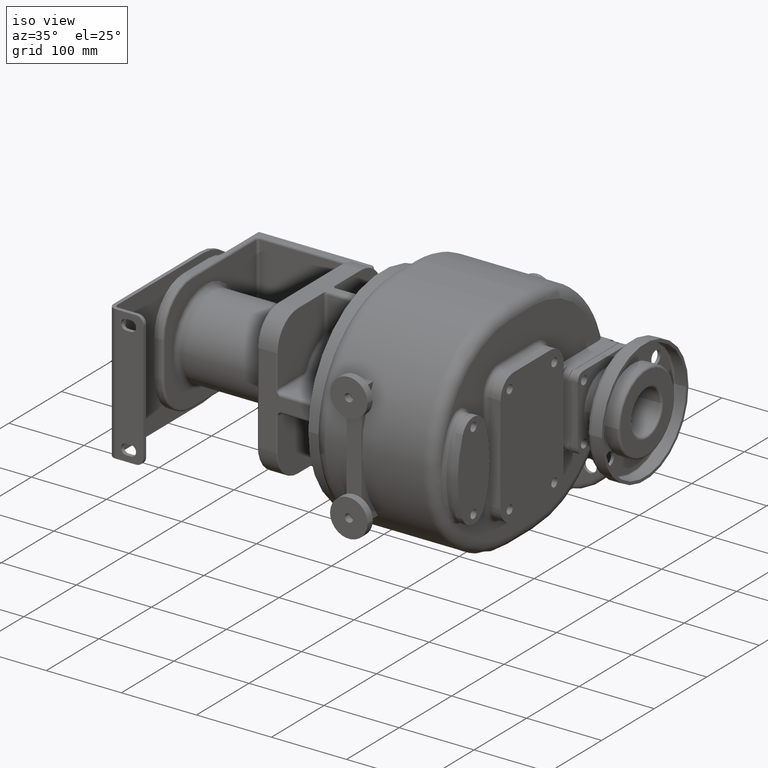
[diagram: clean part render]
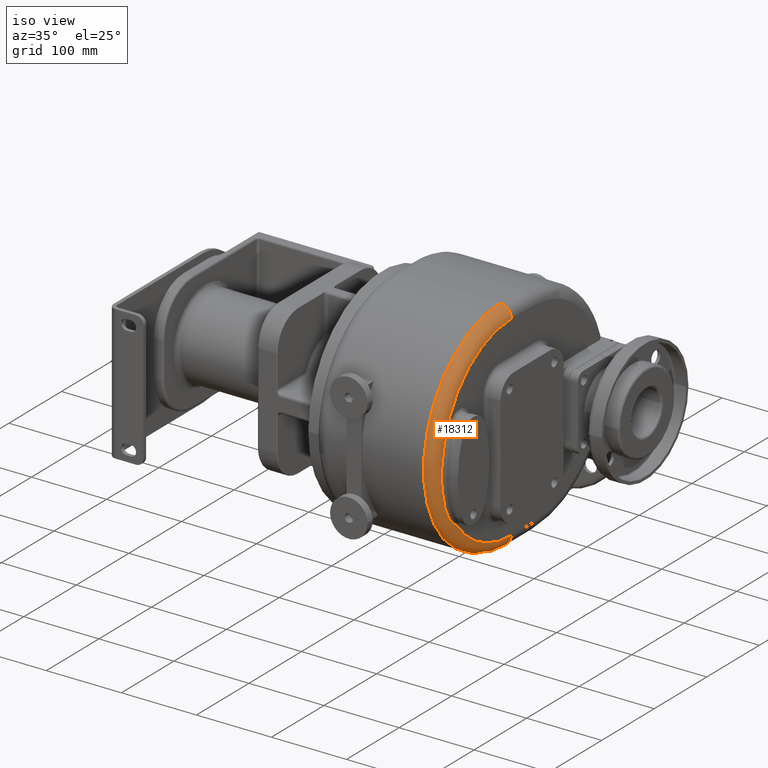
[diagram: same view with one face highlighted and labeled with its STEP entity id]
A machine part, iso view. The second image highlights one B-rep face of the part: STEP entity #18312.
In plain terms, the highlighted toroidal blend (fillet) surface has major radius 130.5 mm and minor (blend) radius 15 mm.
Its self-contained STEP definition (entity closure, byte-faithful):
#3331=CARTESIAN_POINT('',(1.070000014600E2,4.148680451060E1,-7.747566561258E1));
#3508=CARTESIAN_POINT('',(1.07E2,1.465E2,0.E0));
#3509=DIRECTION('',(1.E0,0.E0,0.E0));
#3510=DIRECTION('',(0.E0,0.E0,1.E0));
#3511=AXIS2_PLACEMENT_3D('',#3508,#3509,#3510);
#3531=CARTESIAN_POINT('',(1.07E2,1.465E2,0.E0));
#3532=DIRECTION('',(1.E0,0.E0,0.E0));
#3533=DIRECTION('',(0.E0,-8.046988155031E-1,-5.936832626308E-1));
#3534=AXIS2_PLACEMENT_3D('',#3531,#3532,#3533);
#3582=CARTESIAN_POINT('',(1.069999999108E2,1.961495497169E1,3.050304055502E1));
#3583=CARTESIAN_POINT('',(1.069999997429E2,1.939289387745E1,2.980982321675E1));
#3584=CARTESIAN_POINT('',(1.069994213380E2,1.895643345434E1,2.839323273548E1));
#3585=CARTESIAN_POINT('',(1.069970180368E2,1.832747007382E1,2.617645602467E1));
#3586=CARTESIAN_POINT('',(1.069932384171E2,1.772867814364E1,2.387231503219E1));
#3587=CARTESIAN_POINT('',(1.069881897380E2,1.716366457165E1,2.148388911791E1));
#3588=CARTESIAN_POINT('',(1.069819339558E2,1.663612955822E1,1.901501757293E1));
#3589=CARTESIAN_POINT('',(1.069744817633E2,1.614959404930E1,1.647068728057E1));
#3590=CARTESIAN_POINT('',(1.069658043665E2,1.570743286619E1,1.385604401815E1));
#3591=CARTESIAN_POINT('',(1.069558270471E2,1.531275167586E1,1.117726310058E1));
#3592=CARTESIAN_POINT('',(1.069444419404E2,1.496839615188E1,8.440573632613E0));
#3593=CARTESIAN_POINT('',(1.069315130894E2,1.467696074620E1,5.653224882552E0));
#3594=CARTESIAN_POINT('',(1.069168733034E2,1.444058964303E1,2.822446246899E0));
#3595=CARTESIAN_POINT('',(1.069003612928E2,1.426126735630E1,
-4.365652891571E-2));
#3596=CARTESIAN_POINT('',(1.068817841927E2,1.414030841182E1,-2.936853542524E0));
#3597=CARTESIAN_POINT('',(1.068609957732E2,1.407893299936E1,-5.848645753630E0));
#3598=CARTESIAN_POINT('',(1.068378346032E2,1.407761747392E1,-8.770274042926E0));
#3599=CARTESIAN_POINT('',(1.068122042258E2,1.413662627872E1,-1.169301803167E1));
#3600=CARTESIAN_POINT('',(1.067840551761E2,1.425572594311E1,-1.460810859183E1));
#3601=CARTESIAN_POINT('',(1.067533796443E2,1.443409992801E1,-1.750674627952E1));
#3602=CARTESIAN_POINT('',(1.067203027253E2,1.467082622862E1,-2.038051426484E1));
#3603=CARTESIAN_POINT('',(1.066849760646E2,1.496422275680E1,-2.322118229372E1));
#3604=CARTESIAN_POINT('',(1.066477076434E2,1.531248751259E1,-2.602062981123E1));
#3605=CARTESIAN_POINT('',(1.066088813436E2,1.571330550871E1,-2.877116355572E1));
#3606=CARTESIAN_POINT('',(1.065689941726E2,1.616398215050E1,-3.146515843705E1));
#3607=CARTESIAN_POINT('',(1.065286498736E2,1.666163036353E1,-3.409590238471E1));
#3608=CARTESIAN_POINT('',(1.064885194514E2,1.720290277904E1,-3.665680018034E1));
#3609=CARTESIAN_POINT('',(1.064493608923E2,1.778439919784E1,-3.914226899176E1));
#3610=CARTESIAN_POINT('',(1.064119569769E2,1.840234142837E1,-4.154698510397E1));
#3611=CARTESIAN_POINT('',(1.063771109031E2,1.905295958670E1,-4.386674527459E1));
#3612=CARTESIAN_POINT('',(1.063456122494E2,1.973231387642E1,-4.609779388621E1));
#3613=CARTESIAN_POINT('',(1.063181773127E2,2.043648282856E1,-4.823752561812E1));
#3614=CARTESIAN_POINT('',(1.062954792022E2,2.116168446788E1,-5.028404333353E1));
#3615=CARTESIAN_POINT('',(1.062780343916E2,2.190414569779E1,-5.223645370967E1));
#3616=CARTESIAN_POINT('',(1.062662893138E2,2.266050386582E1,-5.409475805771E1));
#3617=CARTESIAN_POINT('',(1.062605075056E2,2.342744652943E1,-5.585964433544E1));
#3618=CARTESIAN_POINT('',(1.062608426284E2,2.420212401842E1,-5.753266324972E1));
#3619=CARTESIAN_POINT('',(1.062673053246E2,2.498189691341E1,-5.911578122442E1));
#3620=CARTESIAN_POINT('',(1.062797560264E2,2.576440418426E1,-6.061152879970E1));
#3621=CARTESIAN_POINT('',(1.062979790060E2,2.654773737706E1,-6.202280379896E1));
#3622=CARTESIAN_POINT('',(1.063216016858E2,2.733016919853E1,-6.335290416903E1));
#3623=CARTESIAN_POINT('',(1.063502230610E2,2.811034650717E1,-6.460507410755E1));
#3624=CARTESIAN_POINT('',(1.063833053124E2,2.888701867280E1,-6.578280761219E1));
#3625=CARTESIAN_POINT('',(1.064203095301E2,2.965917954439E1,-6.688927607104E1));
#3626=CARTESIAN_POINT('',(1.064605890605E2,3.042592942211E1,-6.792790786816E1));
#3627=CARTESIAN_POINT('',(1.065035141103E2,3.118647558806E1,-6.890162272160E1));
#3628=CARTESIAN_POINT('',(1.065483757673E2,3.194016175419E1,-6.981365835727E1));
#3629=CARTESIAN_POINT('',(1.065944935726E2,3.268633367089E1,-7.066665903593E1));
#3630=CARTESIAN_POINT('',(1.066411415824E2,3.342452365E1,-7.146361385449E1));
#3631=CARTESIAN_POINT('',(1.066876138022E2,3.415411206764E1,-7.220689977700E1));
#3632=CARTESIAN_POINT('',(1.067331909113E2,3.487451534331E1,-7.289895252268E1));
#3633=CARTESIAN_POINT('',(1.067771794532E2,3.558529447603E1,-7.354218324110E1));
#3634=CARTESIAN_POINT('',(1.068189150673E2,3.628607387783E1,-7.413885680678E1));
#3635=CARTESIAN_POINT('',(1.068577631438E2,3.697680990549E1,-7.469147961342E1));
#3636=CARTESIAN_POINT('',(1.068930824316E2,3.765667651611E1,-7.520169296841E1));
#3637=CARTESIAN_POINT('',(1.069242651075E2,3.832479827162E1,-7.567119350825E1));
#3638=CARTESIAN_POINT('',(1.069507733395E2,3.898063386536E1,-7.610183476562E1));
#3639=CARTESIAN_POINT('',(1.069721386363E2,3.962438679554E1,-7.649591860705E1));
#3640=CARTESIAN_POINT('',(1.069879288424E2,4.025655406185E1,-7.685569787666E1));
#3641=CARTESIAN_POINT('',(1.069977297758E2,4.087755687386E1,-7.718313889327E1));
#3642=CARTESIAN_POINT('',(1.070000010841E2,4.128497427298E1,-7.738141131865E1));
#3643=CARTESIAN_POINT('',(1.070000014600E2,4.148680451060E1,-7.747566561258E1));
#3645=CARTESIAN_POINT('',(9.2E1,1.465E2,1.305E2));
#3646=DIRECTION('',(0.E0,-1.E0,0.E0));
#3647=DIRECTION('',(1.E0,0.E0,0.E0));
#3648=AXIS2_PLACEMENT_3D('',#3645,#3646,#3647);
#3650=CARTESIAN_POINT('',(9.2E1,1.465E2,-1.305E2));
#3651=DIRECTION('',(0.E0,1.E0,0.E0));
#3652=DIRECTION('',(1.E0,0.E0,0.E0));
#3653=AXIS2_PLACEMENT_3D('',#3650,#3651,#3652);
#7523=CARTESIAN_POINT('',(9.2E1,1.465E2,0.E0));
#7524=DIRECTION('',(1.E0,0.E0,0.E0));
#7525=DIRECTION('',(0.E0,0.E0,1.E0));
#7526=AXIS2_PLACEMENT_3D('',#7523,#7524,#7525);
#11114=CARTESIAN_POINT('',(1.07E2,1.465E2,-1.305E2));
#11115=VERTEX_POINT('',#11114);
#11116=CARTESIAN_POINT('',(9.2E1,1.465E2,-1.455E2));
#11117=VERTEX_POINT('',#11116);
#11118=CARTESIAN_POINT('',(9.2E1,1.465E2,1.455E2));
#11119=VERTEX_POINT('',#11118);
#11121=CARTESIAN_POINT('',(1.07E2,1.465E2,1.305E2));
#11123=VERTEX_POINT('',#11121);
#11182=VERTEX_POINT('',#3331);
#11186=VERTEX_POINT('',#3582);
#18296=CARTESIAN_POINT('',(9.2E1,1.465E2,0.E0));
#18297=DIRECTION('',(-1.E0,0.E0,0.E0));
#18298=DIRECTION('',(0.E0,7.071469638686E-3,9.999749968460E-1));
#18299=AXIS2_PLACEMENT_3D('',#18296,#18297,#18298);
#18300=TOROIDAL_SURFACE('',#18299,1.305E2,1.5E1);
#18301=ORIENTED_EDGE('',*,*,#18286,.T.);
#18302=ORIENTED_EDGE('',*,*,#18091,.T.);
#18304=ORIENTED_EDGE('',*,*,#18303,.T.);
#18306=ORIENTED_EDGE('',*,*,#18305,.F.);
#18308=ORIENTED_EDGE('',*,*,#18307,.F.);
#18309=ORIENTED_EDGE('',*,*,#18073,.T.);
#18310=EDGE_LOOP('',(#18301,#18302,#18304,#18306,#18308,#18309));
#18311=FACE_OUTER_BOUND('',#18310,.F.);
#18312=ADVANCED_FACE('',(#18311),#18300,.T.);
#3512=CIRCLE('',#3511,1.305E2);
#3535=CIRCLE('',#3534,1.305E2);
#3644=B_SPLINE_CURVE_WITH_KNOTS('',3,(#3582,#3583,#3584,#3585,#3586,#3587,#3588,
#3589,#3590,#3591,#3592,#3593,#3594,#3595,#3596,#3597,#3598,#3599,#3600,#3601,
#3602,#3603,#3604,#3605,#3606,#3607,#3608,#3609,#3610,#3611,#3612,#3613,#3614,
#3615,#3616,#3617,#3618,#3619,#3620,#3621,#3622,#3623,#3624,#3625,#3626,#3627,
#3628,#3629,#3630,#3631,#3632,#3633,#3634,#3635,#3636,#3637,#3638,#3639,#3640,
#3641,#3642,#3643),.UNSPECIFIED.,.F.,.F.,(4,1,1,1,1,1,1,1,1,1,1,1,1,1,1,1,1,1,1,
1,1,1,1,1,1,1,1,1,1,1,1,1,1,1,1,1,1,1,1,1,1,1,1,1,1,1,1,1,1,1,1,1,1,1,1,1,1,1,1,
4),(0.E0,1.694915254237E-2,3.389830508475E-2,5.084745762712E-2,
6.779661016949E-2,8.474576271186E-2,1.016949152542E-1,1.186440677966E-1,
1.355932203390E-1,1.525423728814E-1,1.694915254237E-1,1.864406779661E-1,
2.033898305085E-1,2.203389830508E-1,2.372881355932E-1,2.542372881356E-1,
2.711864406780E-1,2.881355932203E-1,3.050847457627E-1,3.220338983051E-1,
3.389830508475E-1,3.559322033898E-1,3.728813559322E-1,3.898305084746E-1,
4.067796610169E-1,4.237288135593E-1,4.406779661017E-1,4.576271186441E-1,
4.745762711864E-1,4.915254237288E-1,5.084745762712E-1,5.254237288136E-1,
5.423728813559E-1,5.593220338983E-1,5.762711864407E-1,5.932203389831E-1,
6.101694915254E-1,6.271186440678E-1,6.440677966102E-1,6.610169491525E-1,
6.779661016949E-1,6.949152542373E-1,7.118644067797E-1,7.288135593220E-1,
7.457627118644E-1,7.627118644068E-1,7.796610169492E-1,7.966101694915E-1,
8.135593220339E-1,8.305084745763E-1,8.474576271186E-1,8.644067796610E-1,
8.813559322034E-1,8.983050847458E-1,9.152542372881E-1,9.322033898305E-1,
9.491525423729E-1,9.661016949153E-1,9.830508474576E-1,1.E0),.UNSPECIFIED.);
#3649=CIRCLE('',#3648,1.5E1);
#3654=CIRCLE('',#3653,1.5E1);
#7527=CIRCLE('',#7526,1.455E2);
#18073=EDGE_CURVE('',#11123,#11186,#3512,.T.);
#18091=EDGE_CURVE('',#11182,#11115,#3535,.T.);
#18286=EDGE_CURVE('',#11186,#11182,#3644,.T.);
#18303=EDGE_CURVE('',#11115,#11117,#3654,.T.);
#18305=EDGE_CURVE('',#11119,#11117,#7527,.T.);
#18307=EDGE_CURVE('',#11123,#11119,#3649,.T.);